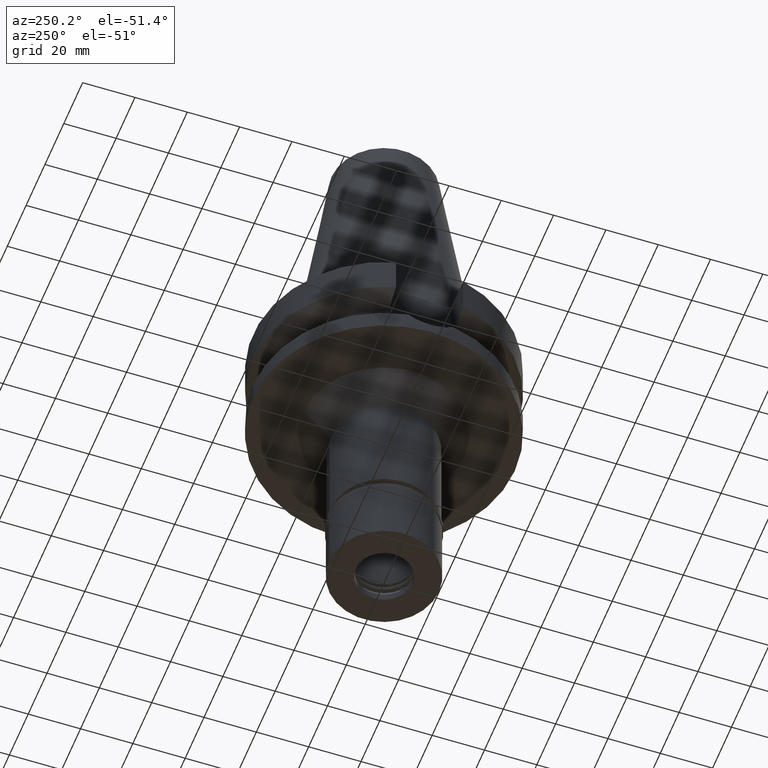
[diagram: clean part render]
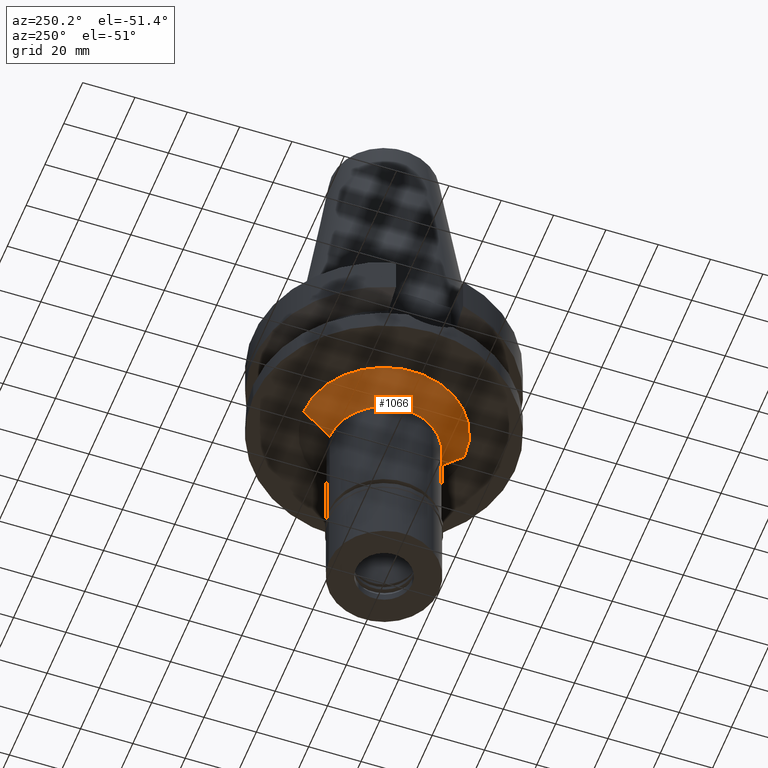
[diagram: same view with one face highlighted and labeled with its STEP entity id]
A machine part, auxiliary view. The second image highlights one B-rep face of the part: STEP entity #1066.
In plain terms, the highlighted conical surface has half-angle 45 deg.
Its self-contained STEP definition (entity closure, byte-faithful):
#50 = FACE_OUTER_BOUND ( 'NONE', #823, .T. ) ;
#71 = ORIENTED_EDGE ( 'NONE', *, *, #956, .T. ) ;
#108 = CARTESIAN_POINT ( 'NONE',  ( 0.0000000000000000000, 0.0000000000000000000, -43.00000000000000000 ) ) ;
#115 = AXIS2_PLACEMENT_3D ( 'NONE', #108, #2281, #521 ) ;
#142 = CARTESIAN_POINT ( 'NONE',  ( 0.0000000000000000000, -20.75000000000000000, -48.00000000000000000 ) ) ;
#166 = ORIENTED_EDGE ( 'NONE', *, *, #791, .T. ) ;
#328 = DIRECTION ( 'NONE',  ( 0.0000000000000000000, -0.7071067811865474617, -0.7071067811865474617 ) ) ;
#521 = DIRECTION ( 'NONE',  ( 0.0000000000000000000, 1.000000000000000000, 0.0000000000000000000 ) ) ;
#537 = DIRECTION ( 'NONE',  ( 0.0000000000000000000, 0.7071067811865474617, -0.7071067811865474617 ) ) ;
#616 = CONICAL_SURFACE ( 'NONE', #115, 25.75000000000000000, 0.7853981633972997312 ) ;
#791 = EDGE_CURVE ( 'NONE', #1631, #836, #2607, .T. ) ;
#823 = EDGE_LOOP ( 'NONE', ( #938, #3037, #166, #71 ) ) ;
#830 = DIRECTION ( 'NONE',  ( 0.0000000000000000000, -1.000000000000000000, 0.0000000000000000000 ) ) ;
#836 = VERTEX_POINT ( 'NONE', #1699 ) ;
#848 = DIRECTION ( 'NONE',  ( 0.0000000000000000000, 0.0000000000000000000, -1.000000000000000000 ) ) ;
#938 = ORIENTED_EDGE ( 'NONE', *, *, #1053, .F. ) ;
#953 = CARTESIAN_POINT ( 'NONE',  ( 0.0000000000000000000, 20.75000000000000000, -48.00000000000000000 ) ) ;
#956 = EDGE_CURVE ( 'NONE', #836, #2733, #2934, .T. ) ;
#984 = AXIS2_PLACEMENT_3D ( 'NONE', #2996, #848, #830 ) ;
#1053 = EDGE_CURVE ( 'NONE', #2419, #2733, #1289, .T. ) ;
#1066 = ADVANCED_FACE ( 'NONE', ( #50 ), #616, .T. ) ;
#1090 = AXIS2_PLACEMENT_3D ( 'NONE', #1313, #1295, #2714 ) ;
#1192 = VECTOR ( 'NONE', #328, 1000.000000000000114 ) ;
#1244 = CARTESIAN_POINT ( 'NONE',  ( 0.0000000000000000000, -30.75000000000000000, -38.00000000000000000 ) ) ;
#1276 = LINE ( 'NONE', #2011, #2390 ) ;
#1289 = CIRCLE ( 'NONE', #1090, 20.75000000000000000 ) ;
#1295 = DIRECTION ( 'NONE',  ( 0.0000000000000000000, 0.0000000000000000000, -1.000000000000000000 ) ) ;
#1313 = CARTESIAN_POINT ( 'NONE',  ( 0.0000000000000000000, 0.0000000000000000000, -48.00000000000000000 ) ) ;
#1631 = VERTEX_POINT ( 'NONE', #1244 ) ;
#1699 = CARTESIAN_POINT ( 'NONE',  ( 0.0000000000000000000, 30.75000000000000000, -38.00000000000000000 ) ) ;
#2011 = CARTESIAN_POINT ( 'NONE',  ( 0.0000000000000000000, -30.75000000000000000, -38.00000000000000000 ) ) ;
#2259 = EDGE_CURVE ( 'NONE', #1631, #2419, #1276, .T. ) ;
#2281 = DIRECTION ( 'NONE',  ( 0.0000000000000000000, 0.0000000000000000000, 1.000000000000000000 ) ) ;
#2390 = VECTOR ( 'NONE', #537, 1000.000000000000114 ) ;
#2419 = VERTEX_POINT ( 'NONE', #142 ) ;
#2607 = CIRCLE ( 'NONE', #984, 30.75000000000000000 ) ;
#2714 = DIRECTION ( 'NONE',  ( 0.0000000000000000000, -1.000000000000000000, 0.0000000000000000000 ) ) ;
#2733 = VERTEX_POINT ( 'NONE', #953 ) ;
#2934 = LINE ( 'NONE', #2947, #1192 ) ;
#2947 = CARTESIAN_POINT ( 'NONE',  ( 0.0000000000000000000, 30.75000000000000000, -38.00000000000000000 ) ) ;
#2996 = CARTESIAN_POINT ( 'NONE',  ( 0.0000000000000000000, 0.0000000000000000000, -38.00000000000000000 ) ) ;
#3037 = ORIENTED_EDGE ( 'NONE', *, *, #2259, .F. ) ;